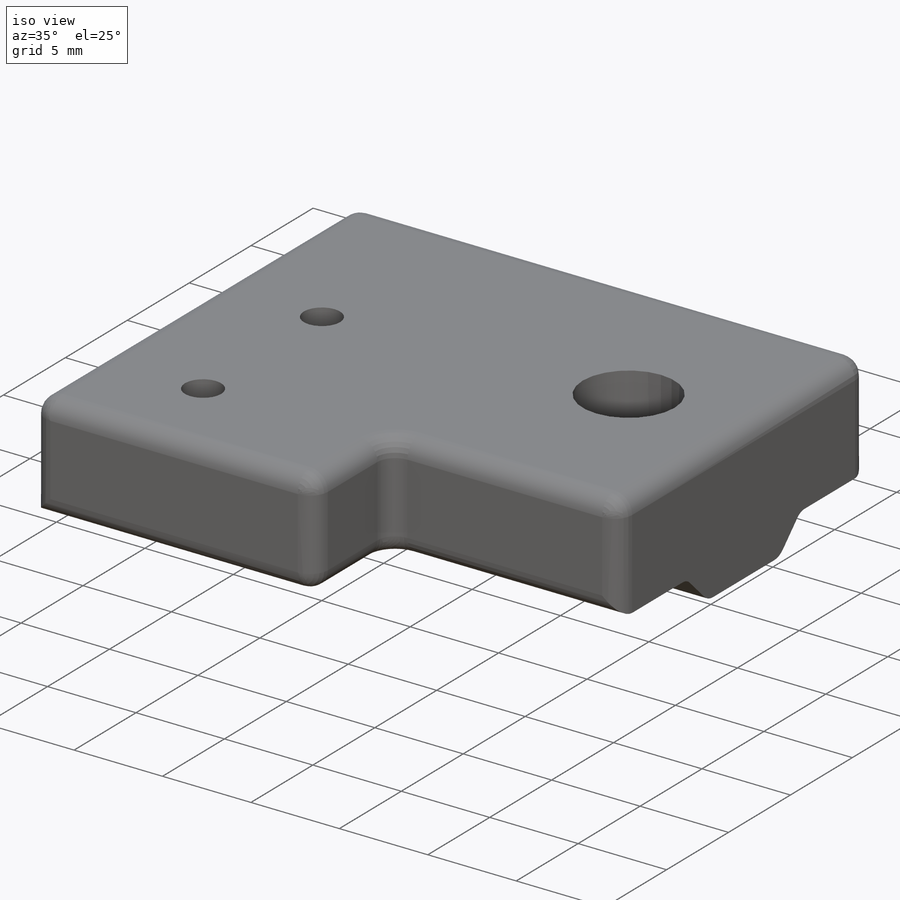
[diagram: iso view]
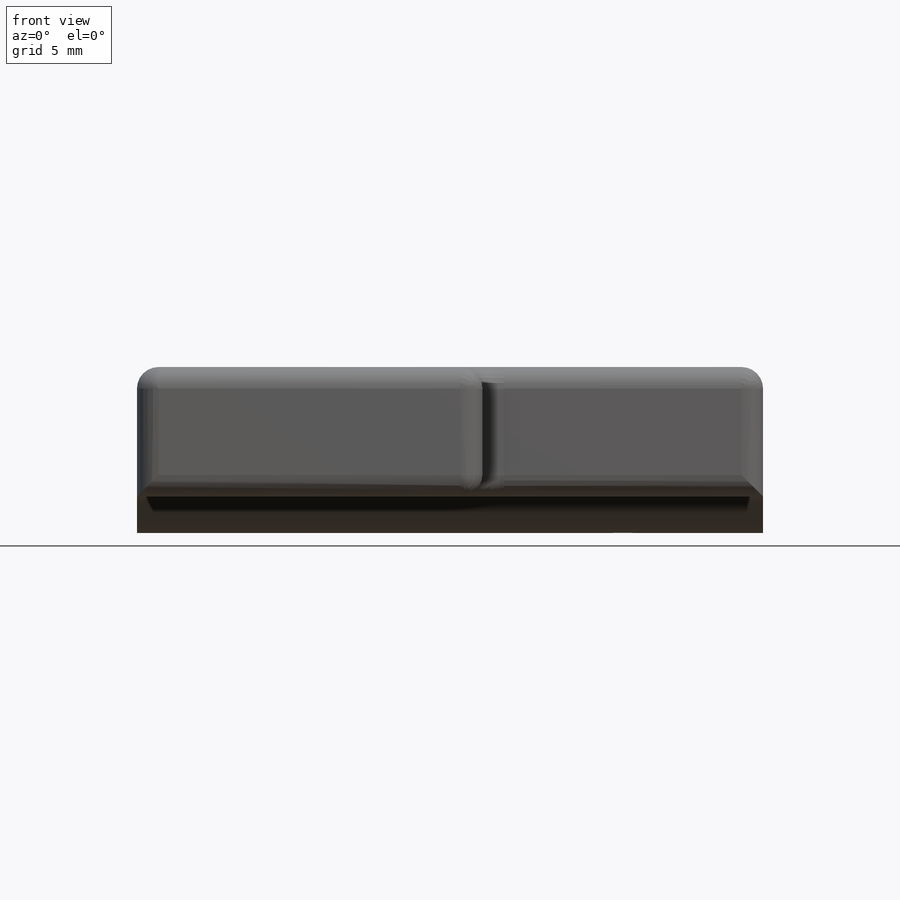
[diagram: front view]
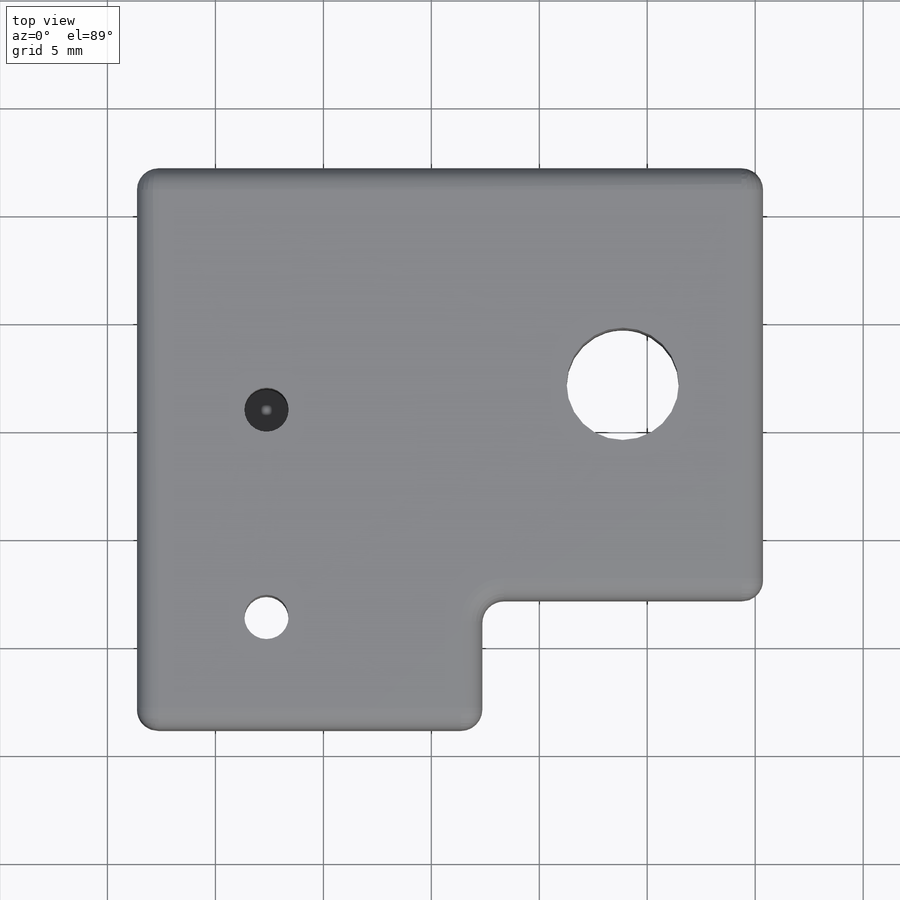
[diagram: top view]
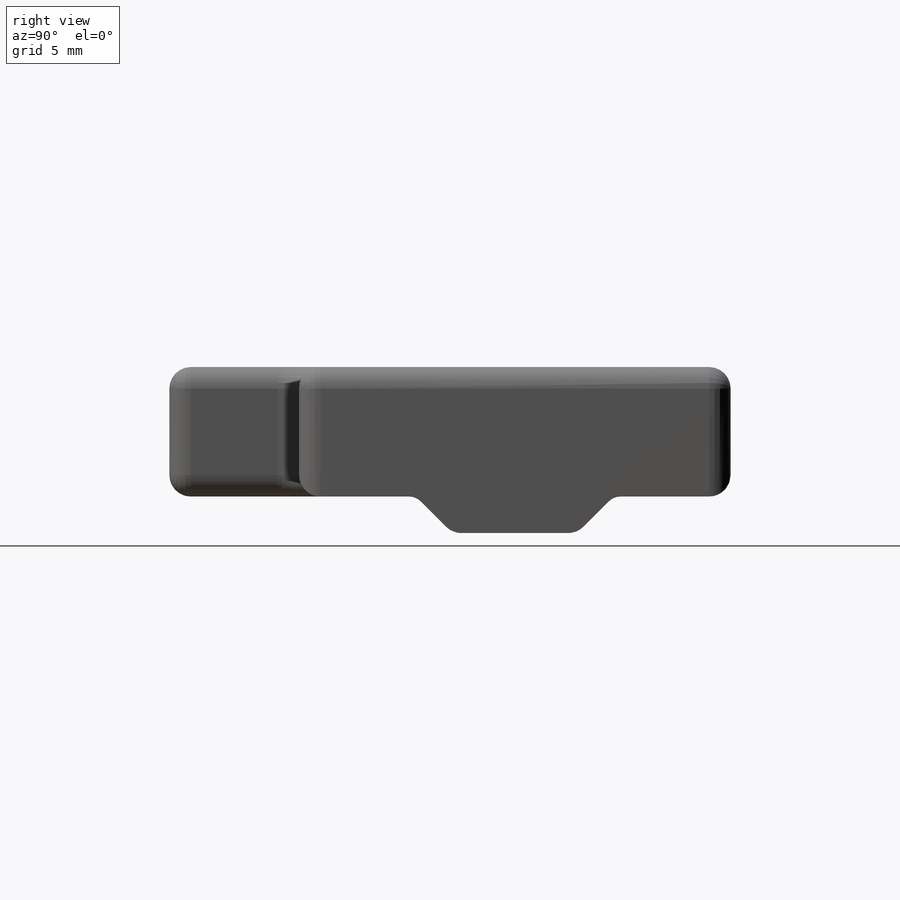
[diagram: right view]
SOLIDWORKS PART (.sldprt)
format: sldprt  version: not decoded by parser v0  size: 396,288 bytes
history: native  units: mm
features: sketch x5, extrude x3, cut_extrude x2, material x1, fillet x1 (+12 scaffold rows collapsed)
feature tree (24):
  scaffold x12  (default folders/planes/origin — collapsed)
  material  "Material <not specified>"
  sketch  "Sketch1"  dims[c1.D2=~2.373018mm c1.D3=20.0mm c2.D2=6.0mm c2.D3=5.78mm c2.D1=0.0mm]
  extrude  "Boss-Extrude1"  Depth=13mm
  sketch  "Sketch2"  dims[D1=~9.115659mm]
  cut_extrude  "Cut-Extrude1"  [1 undecoded]
  sketch  "Sketch5"  dims[D1=0.0mm]
  extrude  "Boss-Extrude3"  Depth=16mm
  sketch  "Sketch6"  dims[c1.D1=6.0mm c1.D2=12.8821mm c2.D1=16.0mm]
  extrude  "Boss-Extrude4"  Depth=6mm
  sketch  "Sketch7"  dims[c1.D1=~4.695847mm c1.D5=2.05mm c1.D6=2.05mm c2.D1=6.0mm c2.D2=6.0mm c2.D3=9.6mm c2.D4=5.2mm]
  cut_extrude  "Cut-Extrude3"  Depth=6mm
  fillet  "Fillet3"  Radius=1mm
decode coverage: 10 of 11 modeling features carry decoded parameters
note: ~ marks probable driven/reference dimensions
note: 1 parameter value undecoded
note: suppression state not decoded; provenance and decode notes live in map.json
